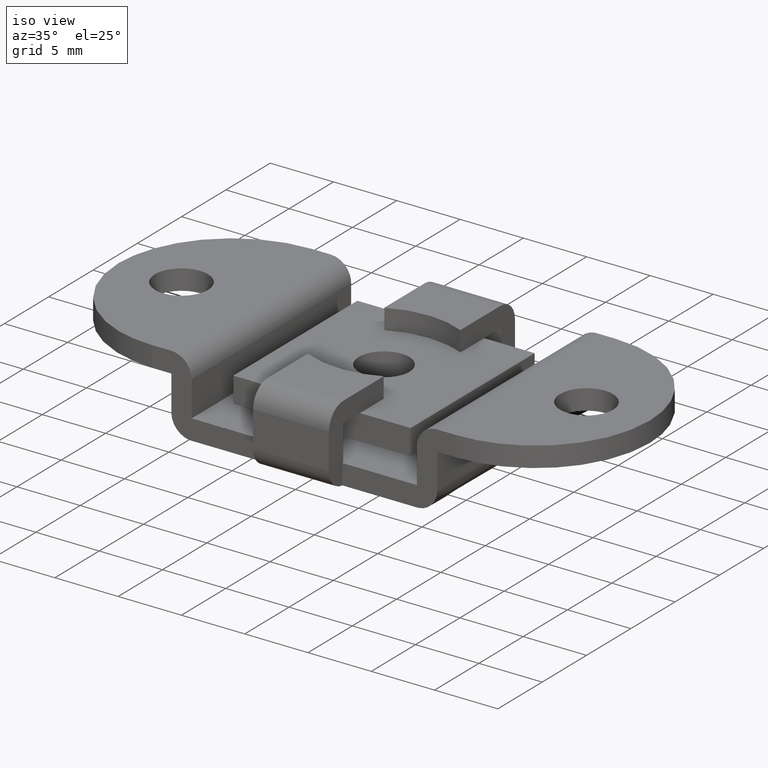
[diagram: clean part render]
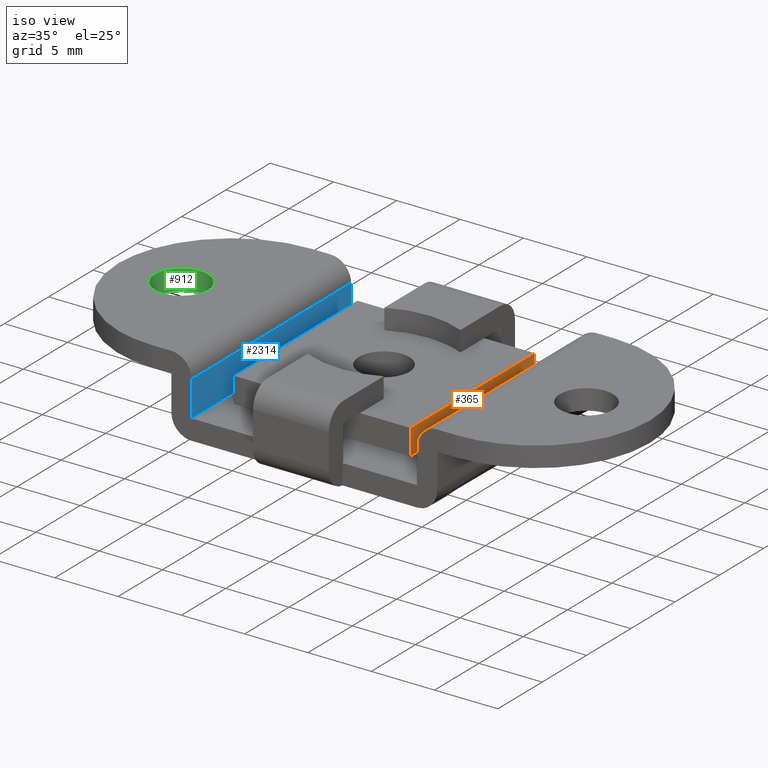
[diagram: same view with three faces highlighted in distinct colors, each labeled with its STEP entity id]
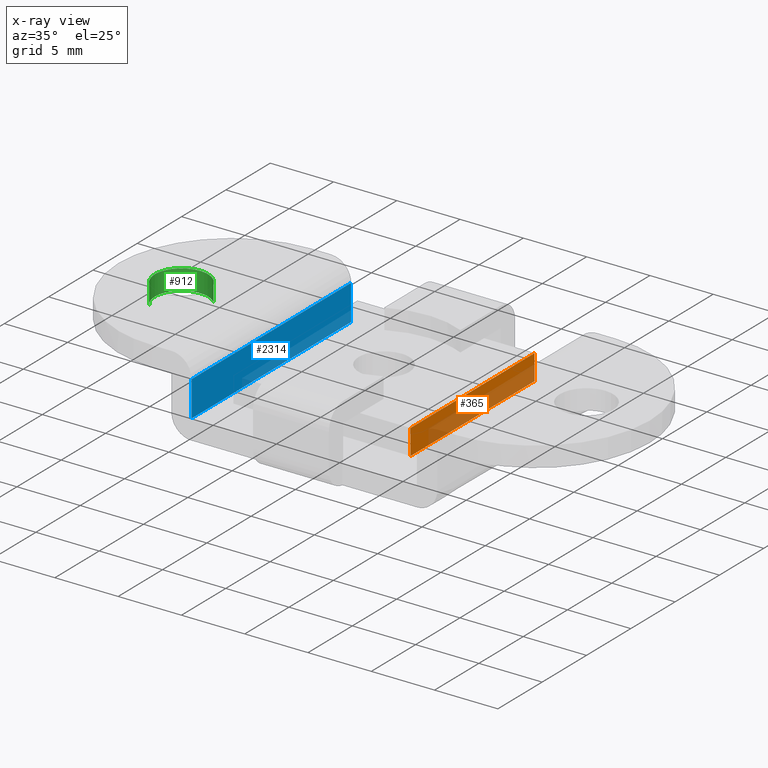
[diagram: x-ray of the same camera — body ghosted, the three highlighted faces saturated]
A machine part, iso view with three faces highlighted in distinct colors.
The next image is the same camera in x-ray (body ghosted, the three faces saturated) — at least one of them is partly hidden behind the body in this view.
Their STEP definitions:

[orange] entity #365 — the highlighted face is a freeform B-spline surface patch.
#219=CARTESIAN_POINT('',(7.0,-7.0,2.399999999999960));
#220=VERTEX_POINT('',#219);
#221=CARTESIAN_POINT('',(7.0,7.000000000000091,2.399999999999960));
#222=VERTEX_POINT('',#221);
#223=CARTESIAN_POINT('',(7.0,-7.0,2.399999999999960));
#224=CARTESIAN_POINT('',(7.0,7.000000000000091,2.399999999999960));
#225=QUASI_UNIFORM_CURVE('',1,(#223,#224),.UNSPECIFIED.,.F.,.U.);
#226=EDGE_CURVE('',#220,#222,#225,.T.);
#263=CARTESIAN_POINT('',(7.0,-7.0,4.400000000000000));
#264=VERTEX_POINT('',#263);
#265=CARTESIAN_POINT('',(7.0,7.000000000000091,4.400000000000000));
#266=VERTEX_POINT('',#265);
#267=CARTESIAN_POINT('',(7.0,-7.0,4.400000000000000));
#268=CARTESIAN_POINT('',(7.0,7.000000000000091,4.400000000000000));
#269=QUASI_UNIFORM_CURVE('',1,(#267,#268),.UNSPECIFIED.,.F.,.U.);
#270=EDGE_CURVE('',#264,#266,#269,.T.);
#308=CARTESIAN_POINT('',(7.0,-7.0,4.400000000000000));
#309=CARTESIAN_POINT('',(7.0,-7.0,2.399999999999960));
#310=QUASI_UNIFORM_CURVE('',1,(#308,#309),.UNSPECIFIED.,.F.,.U.);
#311=EDGE_CURVE('',#264,#220,#310,.T.);
#346=CARTESIAN_POINT('',(7.0,7.000000000000091,4.400000000000000));
#347=CARTESIAN_POINT('',(7.0,7.000000000000091,2.399999999999960));
#348=QUASI_UNIFORM_CURVE('',1,(#346,#347),.UNSPECIFIED.,.F.,.U.);
#349=EDGE_CURVE('',#266,#222,#348,.T.);
#354=CARTESIAN_POINT('',(7.0,-7.699299972865290,2.300100003876346));
#355=CARTESIAN_POINT('',(7.0,-7.699299972865290,4.499900049767795));
#356=CARTESIAN_POINT('',(7.0,7.699300348374641,2.300100003876346));
#357=CARTESIAN_POINT('',(7.0,7.699300348374641,4.499900049767795));
#358=B_SPLINE_SURFACE_WITH_KNOTS('',1,1,((#354,#356),(#355,#357)),.UNSPECIFIED.,.F.,.F.,.U.,(2,2),(2,2),(0.0,2.199800045891449),(0.0,15.398600321239931),.UNSPECIFIED.);
#359=ORIENTED_EDGE('',*,*,#226,.T.);
#360=ORIENTED_EDGE('',*,*,#349,.F.);
#361=ORIENTED_EDGE('',*,*,#270,.F.);
#362=ORIENTED_EDGE('',*,*,#311,.T.);
#363=EDGE_LOOP('',(#359,#360,#361,#362));
#364=FACE_OUTER_BOUND('',#363,.T.);
#365=ADVANCED_FACE('',(#364),#358,.F.);

[blue] entity #2314 — the highlighted face is a freeform B-spline surface patch.
#1071=CARTESIAN_POINT('',(-8.900000000000000,9.0,4.400000000000000));
#1072=VERTEX_POINT('',#1071);
#1094=CARTESIAN_POINT('',(-8.900000000000000,-9.0,4.400000000000000));
#1095=VERTEX_POINT('',#1094);
#1109=CARTESIAN_POINT('',(-8.900000000000000,9.0,4.400000000000000));
#1110=CARTESIAN_POINT('',(-8.900000000000000,-9.0,4.400000000000000));
#1111=QUASI_UNIFORM_CURVE('',1,(#1109,#1110),.UNSPECIFIED.,.F.,.U.);
#1112=EDGE_CURVE('',#1072,#1095,#1111,.T.);
#2287=CARTESIAN_POINT('',(-8.900000000000000,-9.899099965112507,4.539859994573062));
#2288=CARTESIAN_POINT('',(-8.900000000000000,-9.899099965112507,1.460139930324996));
#2289=CARTESIAN_POINT('',(-8.900000000000000,9.899100447910129,4.539859994573062));
#2290=CARTESIAN_POINT('',(-8.900000000000000,9.899100447910129,1.460139930324996));
#2291=B_SPLINE_SURFACE_WITH_KNOTS('',1,1,((#2287,#2289),(#2288,#2290)),.UNSPECIFIED.,.F.,.F.,.U.,(2,2),(2,2),(0.0,3.079720064248066),(0.0,19.798200413022631),.UNSPECIFIED.);
#2292=CARTESIAN_POINT('',(-8.900000000000000,9.0,1.599999999999910));
#2293=VERTEX_POINT('',#2292);
#2294=CARTESIAN_POINT('',(-8.900000000000000,9.0,1.599999999999910));
#2295=CARTESIAN_POINT('',(-8.900000000000000,9.0,4.400000000000000));
#2296=QUASI_UNIFORM_CURVE('',1,(#2294,#2295),.UNSPECIFIED.,.F.,.U.);
#2297=EDGE_CURVE('',#2293,#1072,#2296,.T.);
#2298=ORIENTED_EDGE('',*,*,#2297,.T.);
#2299=ORIENTED_EDGE('',*,*,#1112,.T.);
#2300=CARTESIAN_POINT('',(-8.900000000000000,-9.0,1.599999999999910));
#2301=VERTEX_POINT('',#2300);
#2302=CARTESIAN_POINT('',(-8.900000000000000,-9.0,1.599999999999910));
#2303=CARTESIAN_POINT('',(-8.900000000000000,-9.0,4.400000000000000));
#2304=QUASI_UNIFORM_CURVE('',1,(#2302,#2303),.UNSPECIFIED.,.F.,.U.);
#2305=EDGE_CURVE('',#2301,#1095,#2304,.T.);
#2306=ORIENTED_EDGE('',*,*,#2305,.F.);
#2307=CARTESIAN_POINT('',(-8.900000000000000,9.0,1.599999999999910));
#2308=CARTESIAN_POINT('',(-8.900000000000000,-9.0,1.599999999999910));
#2309=QUASI_UNIFORM_CURVE('',1,(#2307,#2308),.UNSPECIFIED.,.F.,.U.);
#2310=EDGE_CURVE('',#2293,#2301,#2309,.T.);
#2311=ORIENTED_EDGE('',*,*,#2310,.F.);
#2312=EDGE_LOOP('',(#2298,#2299,#2306,#2311));
#2313=FACE_OUTER_BOUND('',#2312,.T.);
#2314=ADVANCED_FACE('',(#2313),#2291,.T.);

[green] entity #912 — the highlighted face is a freeform B-spline surface patch.
#800=CARTESIAN_POINT('',(-14.476713820874201,1.445544608956883,4.360000000000000));
#801=CARTESIAN_POINT('',(-15.922258429831084,2.968830788082685,4.360000000000001));
#802=CARTESIAN_POINT('',(-17.445544608956880,1.523286179125803,4.360000000000000));
#803=CARTESIAN_POINT('',(-18.968830788082684,0.077741570168921,4.360000000000001));
#804=CARTESIAN_POINT('',(-17.523286179125812,-1.445544608956883,4.360000000000000));
#805=CARTESIAN_POINT('',(-14.476713820874201,1.445544608956883,6.041000000000000));
#806=CARTESIAN_POINT('',(-15.922258429831084,2.968830788082685,6.041000000000002));
#807=CARTESIAN_POINT('',(-17.445544608956880,1.523286179125803,6.041000000000000));
#808=CARTESIAN_POINT('',(-18.968830788082684,0.077741570168921,6.041000000000002));
#809=CARTESIAN_POINT('',(-17.523286179125812,-1.445544608956883,6.041000000000000));
#817=(BOUNDED_SURFACE()B_SPLINE_SURFACE(2,1,((#800,#805),(#801,#806),(#802,#807),(#803,#808),(#804,#809)),.UNSPECIFIED.,.F.,.F.,.U.)B_SPLINE_SURFACE_WITH_KNOTS((3,2,3),(2,2),(0.0,3.479393923933998,6.958787847867996),(0.0,1.0),.UNSPECIFIED.)GEOMETRIC_REPRESENTATION_ITEM()RATIONAL_B_SPLINE_SURFACE(((1.0,1.0),(0.707106781186548,0.707106781186548),(1.0,1.0),(0.707106781186548,0.707106781186548),(1.0,1.0)))REPRESENTATION_ITEM('')SURFACE());
#818=CARTESIAN_POINT('',(-14.476713900647679,1.445544507287878,4.400000000002642));
#819=VERTEX_POINT('',#818);
#820=CARTESIAN_POINT('',(-16.000000512101650,2.099999999999938,4.400000000000001));
#821=VERTEX_POINT('',#820);
#822=CARTESIAN_POINT('',(-14.476713900647679,1.445544507287878,4.400000000002642));
#823=CARTESIAN_POINT('',(-14.604986658030651,1.580813531093151,4.400000000002422));
#824=CARTESIAN_POINT('',(-14.849087503379760,1.777426562988330,4.400000000001996));
#825=CARTESIAN_POINT('',(-15.193051600882340,1.946338352689887,4.400000000001403));
#826=CARTESIAN_POINT('',(-15.556194097585660,2.065491209972856,4.400000000000762));
#827=CARTESIAN_POINT('',(-15.813581258233370,2.100064938225668,4.400000000000336));
#828=CARTESIAN_POINT('',(-16.000000512101650,2.099999999999938,4.400000000000001));
#829=B_SPLINE_CURVE_WITH_KNOTS('',3,(#822,#823,#824,#825,#826,#827,#828),.UNSPECIFIED.,.F.,.U.,(4,1,1,1,4),(0.000000013370605,0.559234785166516,0.932051308224229,1.145091140431083,1.704325912235077),.UNSPECIFIED.);
#830=EDGE_CURVE('',#819,#821,#829,.T.);
#831=ORIENTED_EDGE('',*,*,#830,.F.);
#832=CARTESIAN_POINT('',(-14.476713900802160,1.445544507450665,6.0));
#833=VERTEX_POINT('',#832);
#834=CARTESIAN_POINT('',(-14.476713900647679,1.445544507287878,4.400000000002642));
#835=CARTESIAN_POINT('',(-14.476713900802160,1.445544507450665,6.0));
#836=QUASI_UNIFORM_CURVE('',1,(#834,#835),.UNSPECIFIED.,.F.,.U.);
#837=EDGE_CURVE('',#819,#833,#836,.T.);
#838=ORIENTED_EDGE('',*,*,#837,.T.);
#839=CARTESIAN_POINT('',(-16.000000512101650,2.099999999999938,6.0));
#840=VERTEX_POINT('',#839);
#841=CARTESIAN_POINT('',(-14.476713900802160,1.445544507450665,6.0));
#842=CARTESIAN_POINT('',(-14.617190560568890,1.593711484043368,6.000000000000009));
#843=CARTESIAN_POINT('',(-14.885391403838060,1.804133520347521,6.000000000000001));
#844=CARTESIAN_POINT('',(-15.405348990218300,2.039375682377373,6.000000000000007));
#845=CARTESIAN_POINT('',(-15.769186279203099,2.100134379405195,6.000000000000050));
#846=CARTESIAN_POINT('',(-16.000000512101650,2.099999999999938,6.0));
#847=B_SPLINE_CURVE_WITH_KNOTS('',3,(#841,#842,#843,#844,#845,#846),.UNSPECIFIED.,.F.,.U.,(4,1,1,4),(0.000000013370970,0.612494595998296,1.011940877106440,1.704325912010658),.UNSPECIFIED.);
#848=EDGE_CURVE('',#833,#840,#847,.T.);
#849=ORIENTED_EDGE('',*,*,#848,.T.);
#850=CARTESIAN_POINT('',(-18.100000000000001,0.0,6.0));
#851=VERTEX_POINT('',#850);
#852=CARTESIAN_POINT('',(-16.000000512101650,2.099999999999938,6.0));
#853=CARTESIAN_POINT('',(-16.171807783640070,2.100041514918341,5.999999999999997));
#854=CARTESIAN_POINT('',(-16.515405789018288,2.057601591833775,6.000000000000017));
#855=CARTESIAN_POINT('',(-16.943390267629830,1.892525328462123,5.999999999999978));
#856=CARTESIAN_POINT('',(-17.320507216173478,1.650442646713644,6.000000000000042));
#857=CARTESIAN_POINT('',(-17.613181813747818,1.368362274713230,5.999999999999893));
#858=CARTESIAN_POINT('',(-17.864683930263968,0.996897922856978,6.000000000000163));
#859=CARTESIAN_POINT('',(-18.049920703954950,0.549746130266517,5.999999999999930));
#860=CARTESIAN_POINT('',(-18.100074452988920,0.197581610387514,6.000000000000103));
#861=CARTESIAN_POINT('',(-18.100000000000001,0.0,6.0));
#862=B_SPLINE_CURVE_WITH_KNOTS('',3,(#852,#853,#854,#855,#856,#857,#858,#859,#860,#861),.UNSPECIFIED.,.F.,.U.,(4,1,1,1,1,1,1,4),(0.000000046252011,0.515415787775858,1.030845410788452,1.365876111623665,1.855501877025961,2.242075191238146,2.705963876297877,3.298692695409696),.UNSPECIFIED.);
#863=EDGE_CURVE('',#840,#851,#862,.T.);
#864=ORIENTED_EDGE('',*,*,#863,.T.);
#865=CARTESIAN_POINT('',(-17.523286099197840,-1.445544507450659,6.0));
#866=VERTEX_POINT('',#865);
#867=CARTESIAN_POINT('',(-18.100000000000001,0.0,6.0));
#868=CARTESIAN_POINT('',(-18.100028026367060,-0.149473970522556,5.999999999999981));
#869=CARTESIAN_POINT('',(-18.074171064151990,-0.390275636764554,6.000000000000020));
#870=CARTESIAN_POINT('',(-17.975703712147538,-0.734291597053197,5.999999999999979));
#871=CARTESIAN_POINT('',(-17.816958433183249,-1.083176735437412,6.000000000000078));
#872=CARTESIAN_POINT('',(-17.643358195589538,-1.319078019589394,5.999999999999869));
#873=CARTESIAN_POINT('',(-17.523286099197840,-1.445544507450659,6.0));
#874=B_SPLINE_CURVE_WITH_KNOTS('',3,(#867,#868,#869,#870,#871,#872,#873),.UNSPECIFIED.,.F.,.U.,(4,1,1,1,4),(0.000000010962490,0.448416419998087,0.722448413895785,1.071213996347360,1.594367552685079),.UNSPECIFIED.);
#875=EDGE_CURVE('',#851,#866,#874,.T.);
#876=ORIENTED_EDGE('',*,*,#875,.T.);
#877=CARTESIAN_POINT('',(-17.523286099352319,-1.445544507287873,4.400000000002641));
#878=VERTEX_POINT('',#877);
#879=CARTESIAN_POINT('',(-17.523286099352319,-1.445544507287873,4.400000000002641));
#880=CARTESIAN_POINT('',(-17.523286099197840,-1.445544507450659,6.0));
#881=QUASI_UNIFORM_CURVE('',1,(#879,#880),.UNSPECIFIED.,.F.,.U.);
#882=EDGE_CURVE('',#878,#866,#881,.T.);
#883=ORIENTED_EDGE('',*,*,#882,.F.);
#884=CARTESIAN_POINT('',(-18.100000000000001,0.0,4.400000000000000));
#885=VERTEX_POINT('',#884);
#886=CARTESIAN_POINT('',(-18.100000000000001,0.0,4.400000000000000));
#887=CARTESIAN_POINT('',(-18.100025425766681,-0.149473727414828,4.400000000000272));
#888=CARTESIAN_POINT('',(-18.074173178970621,-0.390276028070019,4.400000000000722));
#889=CARTESIAN_POINT('',(-17.975704974728160,-0.734292450588439,4.400000000001326));
#890=CARTESIAN_POINT('',(-17.816952022386701,-1.083172785076838,4.400000000002033));
#891=CARTESIAN_POINT('',(-17.643364443303039,-1.319082354862367,4.400000000002341));
#892=CARTESIAN_POINT('',(-17.523286099352319,-1.445544507287873,4.400000000002641));
#893=B_SPLINE_CURVE_WITH_KNOTS('',3,(#886,#887,#888,#889,#890,#891,#892),.UNSPECIFIED.,.F.,.U.,(4,1,1,1,4),(0.000000010960505,0.448416419933769,0.722448413793323,1.071213996196263,1.594367552460659),.UNSPECIFIED.);
#894=EDGE_CURVE('',#885,#878,#893,.T.);
#895=ORIENTED_EDGE('',*,*,#894,.F.);
#896=CARTESIAN_POINT('',(-16.000000512101650,2.099999999999938,4.400000000000001));
#897=CARTESIAN_POINT('',(-16.171808117205650,2.100041949711993,4.400000000000000));
#898=CARTESIAN_POINT('',(-16.515403620875571,2.057598765713719,4.400000000000013));
#899=CARTESIAN_POINT('',(-16.943397267670790,1.892534452830907,4.399999999999995));
#900=CARTESIAN_POINT('',(-17.269722566937890,1.683007706738398,4.400000000000001));
#901=CARTESIAN_POINT('',(-17.534294692935259,1.449087063771579,4.399999999999996));
#902=CARTESIAN_POINT('',(-17.755432646437470,1.172788665884410,4.400000000000030));
#903=CARTESIAN_POINT('',(-17.919776756048240,0.869774141453141,4.399999999999989));
#904=CARTESIAN_POINT('',(-18.058470405854202,0.489608871964181,4.399999999999972));
#905=CARTESIAN_POINT('',(-18.100073857117948,0.197585364565011,4.400000000000048));
#906=CARTESIAN_POINT('',(-18.100000000000001,0.0,4.400000000000000));
#907=B_SPLINE_CURVE_WITH_KNOTS('',3,(#896,#897,#898,#899,#900,#901,#902,#903,#904,#905,#906),.UNSPECIFIED.,.F.,.U.,(4,1,1,1,1,1,1,1,4),(0.000000046252011,0.515415787775858,1.030845410788452,1.365876111623665,1.675103511959973,2.087445731198291,2.422476914050863,2.705963876297877,3.298692695409696),.UNSPECIFIED.);
#908=EDGE_CURVE('',#821,#885,#907,.T.);
#909=ORIENTED_EDGE('',*,*,#908,.F.);
#910=EDGE_LOOP('',(#831,#838,#849,#864,#876,#883,#895,#909));
#911=FACE_OUTER_BOUND('',#910,.T.);
#912=ADVANCED_FACE('',(#911),#817,.F.);